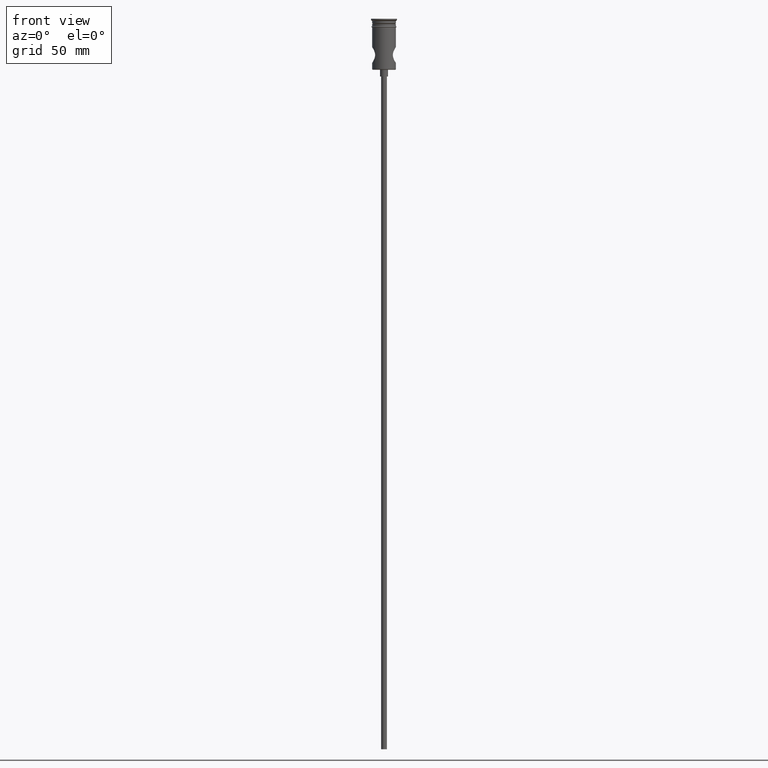
[diagram: clean part render]
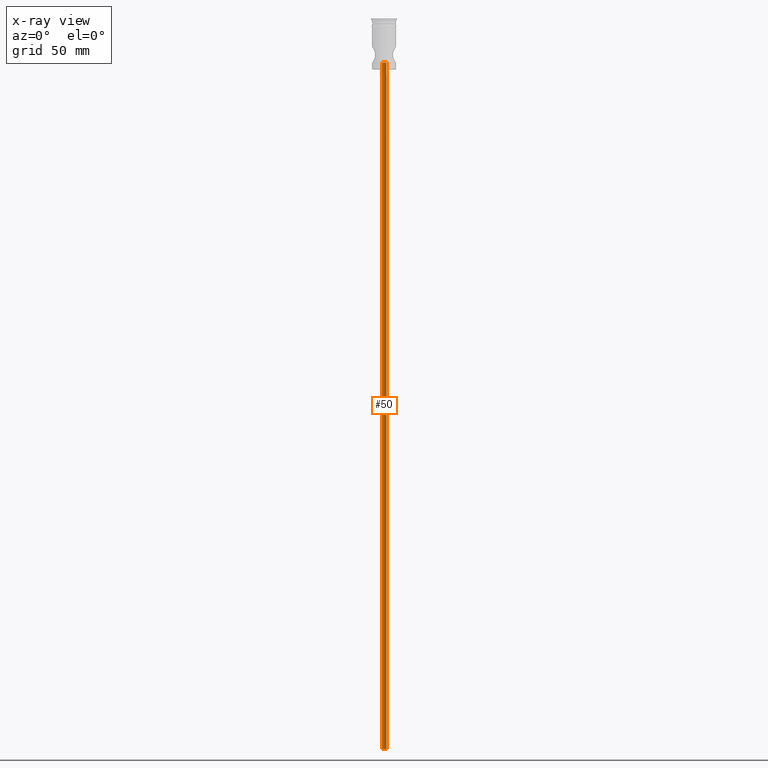
[diagram: x-ray — body ghosted, one internal face saturated and labeled with its STEP entity id]
A machine part, front view, then the same camera in x-ray: the body is ghosted and one INTERNAL B-rep face — a face not visible from any outside direction — is saturated and labeled: STEP entity #50.
In plain terms, the highlighted cylindrical surface (edge-blend (fillet) strip) has radius 1 mm, axis along (-0, -0, -1).
Its self-contained STEP definition (entity closure, byte-faithful):
#4 = DIRECTION ( 'NONE',  ( -0.000000000000000000, -0.000000000000000000, -1.000000000000000000 ) ) ;
#27 = VERTEX_POINT ( 'NONE', #907 ) ;
#41 = CARTESIAN_POINT ( 'NONE',  ( 1.000000000000000000, 4.681958892246364514E-21, -19.50000000000000000 ) ) ;
#50 = ADVANCED_FACE ( 'NONE', ( #284 ), #943, .F. ) ;
#90 = CIRCLE ( 'NONE', #502, 1.000000000000000000 ) ;
#107 = EDGE_CURVE ( 'NONE', #1393, #1371, #575, .T. ) ;
#119 = CARTESIAN_POINT ( 'NONE',  ( 0.000000000000000000, 0.000000000000000000, -322.5000000000000000 ) ) ;
#156 = EDGE_LOOP ( 'NONE', ( #693, #1276, #1249, #916 ) ) ;
#247 = CARTESIAN_POINT ( 'NONE',  ( -0.1316936354710128432, 1.000019739161273513, -19.35409608116890112 ) ) ;
#278 = CARTESIAN_POINT ( 'NONE',  ( 1.000000000000000000, 0.1309286667429949147, -19.49999999999999645 ) ) ;
#284 = FACE_OUTER_BOUND ( 'NONE', #156, .T. ) ;
#298 = CARTESIAN_POINT ( 'NONE',  ( 0.9735452106493993618, 0.2631358747190585823, -19.49219990523366519 ) ) ;
#304 = CARTESIAN_POINT ( 'NONE',  ( -0.5041604651539031146, 0.8734111625493790054, -19.38966761113383086 ) ) ;
#370 = VECTOR ( 'NONE', #4, 1000.000000000000000 ) ;
#390 = EDGE_CURVE ( 'NONE', #521, #27, #1063, .T. ) ;
#443 = CARTESIAN_POINT ( 'NONE',  ( -0.9732933389586853057, 0.2640922853737913134, -19.49212774291619965 ) ) ;
#490 = CARTESIAN_POINT ( 'NONE',  ( -0.2631726871121145006, 0.9735322132565759068, -19.36228026829819271 ) ) ;
#502 = AXIS2_PLACEMENT_3D ( 'NONE', #119, #1116, #770 ) ;
#515 = CARTESIAN_POINT ( 'NONE',  ( 0.7994811891185863439, 0.6146929329460447677, -19.44688657914280228 ) ) ;
#521 = VERTEX_POINT ( 'NONE', #971 ) ;
#527 = CARTESIAN_POINT ( 'NONE',  ( -0.7985123707879597799, 0.6157855475276747814, -19.44667449721106323 ) ) ;
#575 = LINE ( 'NONE', #1025, #370 ) ;
#607 = CARTESIAN_POINT ( 'NONE',  ( -1.000000000000000000, 0.000000000000000000, 0.0009999999999732445133 ) ) ;
#661 = EDGE_CURVE ( 'NONE', #27, #1371, #90, .T. ) ;
#689 = B_SPLINE_CURVE_WITH_KNOTS ( 'NONE', 3,
 ( #41, #278, #298, #1383, #515, #957, #1400, #788, #1230, #247, #490, #304, #872, #527, #1208, #443, #865, #1094 ),
 .UNSPECIFIED., .F., .F.,
 ( 4, 2, 2, 2, 2, 2, 2, 2, 4 ),
 ( 0.003142913064405511523, 0.003535670621078468041, 0.003928428177751424125, 0.004321185734424380642, 0.004713943291097337160, 0.005106700847770293678, 0.005499458404443250195, 0.005892215961116205845, 0.006284973517789162363 ),
 .UNSPECIFIED. ) ;
#693 = ORIENTED_EDGE ( 'NONE', *, *, #107, .F. ) ;
#770 = DIRECTION ( 'NONE',  ( -1.000000000000000000, 0.000000000000000000, 0.000000000000000000 ) ) ;
#773 = CARTESIAN_POINT ( 'NONE',  ( 1.000000000000000000, 1.224646799147353207E-16, -322.5000000000000000 ) ) ;
#788 = CARTESIAN_POINT ( 'NONE',  ( 0.2621150761560532283, 0.9740305859285212087, -19.36214649845096858 ) ) ;
#865 = CARTESIAN_POINT ( 'NONE',  ( -1.000000000000000222, 0.1328548843624557663, -19.50000000000000355 ) ) ;
#872 = CARTESIAN_POINT ( 'NONE',  ( -0.6150493311797187168, 0.7990795749240167112, -19.40884566432808001 ) ) ;
#907 = CARTESIAN_POINT ( 'NONE',  ( -1.000000000000000000, 0.000000000000000000, -322.5000000000000000 ) ) ;
#916 = ORIENTED_EDGE ( 'NONE', *, *, #661, .T. ) ;
#930 = CARTESIAN_POINT ( 'NONE',  ( 0.000000000000000000, 0.000000000000000000, 0.0009999999999732445133 ) ) ;
#939 = CARTESIAN_POINT ( 'NONE',  ( 1.000000000000000000, 4.681958892246364514E-21, -19.50000000000000000 ) ) ;
#943 = CYLINDRICAL_SURFACE ( 'NONE', #1440, 1.000000000000000000 ) ;
#957 = CARTESIAN_POINT ( 'NONE',  ( 0.6150344307886690398, 0.7992185073637478876, -19.40883033734092322 ) ) ;
#971 = CARTESIAN_POINT ( 'NONE',  ( -1.000000000000000000, 0.000000000000000000, -19.50000000000000000 ) ) ;
#1025 = CARTESIAN_POINT ( 'NONE',  ( 1.000000000000000000, 1.224646799147353207E-16, 0.0009999999999732445133 ) ) ;
#1063 = LINE ( 'NONE', #607, #1417 ) ;
#1094 = CARTESIAN_POINT ( 'NONE',  ( -1.000000000000000000, 0.000000000000000000, -19.50000000000000000 ) ) ;
#1103 = DIRECTION ( 'NONE',  ( -0.000000000000000000, -0.000000000000000000, -1.000000000000000000 ) ) ;
#1116 = DIRECTION ( 'NONE',  ( 0.000000000000000000, 0.000000000000000000, -1.000000000000000000 ) ) ;
#1158 = EDGE_CURVE ( 'NONE', #1393, #521, #689, .T. ) ;
#1208 = CARTESIAN_POINT ( 'NONE',  ( -0.8728688940508974037, 0.5051183550947857537, -19.46548068172155510 ) ) ;
#1230 = CARTESIAN_POINT ( 'NONE',  ( 0.1319932390273248490, 0.9999802383981537535, -19.35410785802095646 ) ) ;
#1249 = ORIENTED_EDGE ( 'NONE', *, *, #390, .T. ) ;
#1252 = DIRECTION ( 'NONE',  ( -0.000000000000000000, -0.000000000000000000, -1.000000000000000000 ) ) ;
#1276 = ORIENTED_EDGE ( 'NONE', *, *, #1158, .T. ) ;
#1371 = VERTEX_POINT ( 'NONE', #773 ) ;
#1383 = CARTESIAN_POINT ( 'NONE',  ( 0.8734106350840727950, 0.5041672621904196294, -19.46561914214669287 ) ) ;
#1393 = VERTEX_POINT ( 'NONE', #939 ) ;
#1399 = DIRECTION ( 'NONE',  ( -1.000000000000000000, 0.000000000000000000, 0.000000000000000000 ) ) ;
#1400 = CARTESIAN_POINT ( 'NONE',  ( 0.5059809035076541228, 0.8725956800019867288, -19.38988811594309425 ) ) ;
#1417 = VECTOR ( 'NONE', #1252, 1000.000000000000000 ) ;
#1440 = AXIS2_PLACEMENT_3D ( 'NONE', #930, #1103, #1399 ) ;